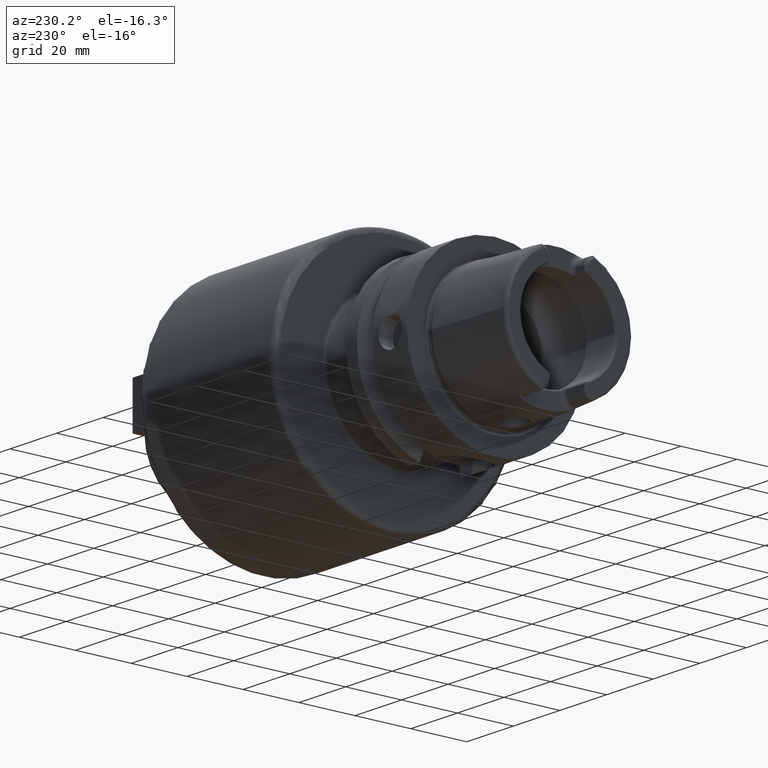
[diagram: clean part render]
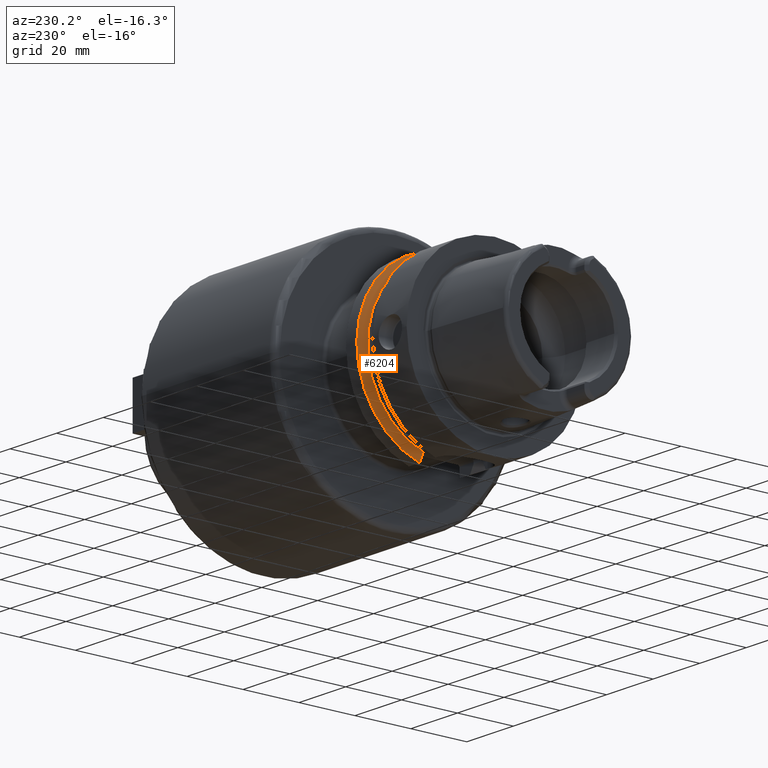
[diagram: same view with one face highlighted and labeled with its STEP entity id]
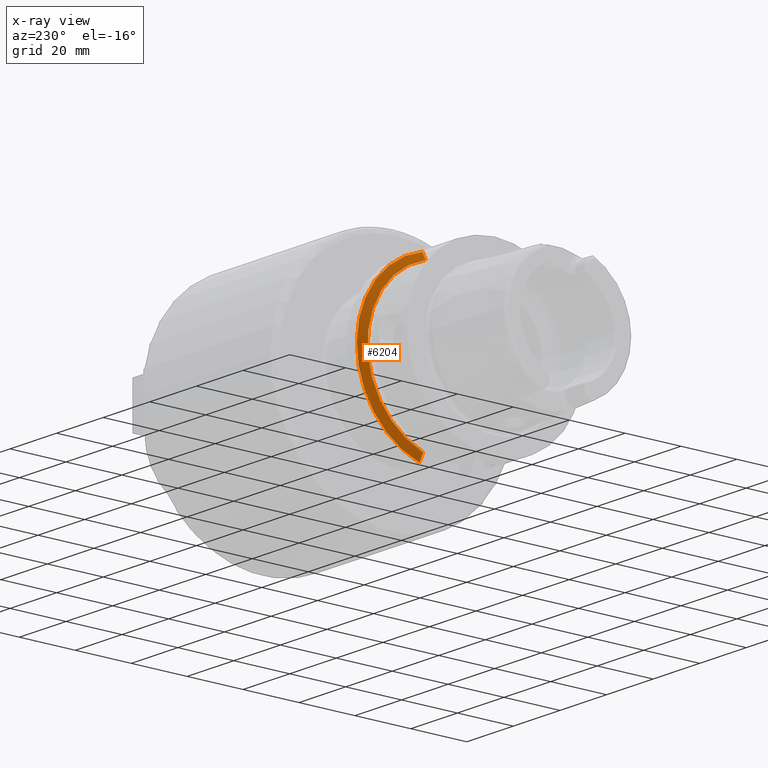
[diagram: x-ray of the same camera — body ghosted, the highlighted face saturated]
A machine part, auxiliary view. The second image highlights one B-rep face of the part: STEP entity #6204.
The next image is the same camera in x-ray: the body ghosted, the highlighted face saturated — about 0% of this face is hidden behind the body in this view.
In plain terms, the highlighted conical surface has half-angle 60 deg.
Its self-contained STEP definition (entity closure, byte-faithful):
#2166=CARTESIAN_POINT('',(2.137749907476E1,9.0175E0,-3.018169467989E1));
#2167=CARTESIAN_POINT('',(2.120260671566E1,9.0175E0,-2.986554088755E1));
#2168=CARTESIAN_POINT('',(2.085812292499E1,9.0175E0,-2.924200119110E1));
#2169=CARTESIAN_POINT('',(2.035750942268E1,9.0175E0,-2.833337204728E1));
#2170=CARTESIAN_POINT('',(2.003409260855E1,9.0175E0,-2.774465116011E1));
#2171=CARTESIAN_POINT('',(1.9875E1,9.0175E0,-2.745461174016E1));
#2173=CARTESIAN_POINT('',(2.137749907476E1,0.E0,0.E0));
#2174=DIRECTION('',(1.E0,0.E0,0.E0));
#2175=DIRECTION('',(0.E0,2.862698412698E-1,-9.581490374568E-1));
#2176=AXIS2_PLACEMENT_3D('',#2173,#2174,#2175);
#2178=CARTESIAN_POINT('',(1.9875E1,8.0175E0,2.776311772483E1));
#2179=CARTESIAN_POINT('',(2.003456921596E1,8.0175E0,2.805079344433E1));
#2180=CARTESIAN_POINT('',(2.035862308375E1,8.0175E0,2.863431787984E1));
#2181=CARTESIAN_POINT('',(2.085926872163E1,8.0175E0,2.953380309393E1));
#2182=CARTESIAN_POINT('',(2.120309833211E1,8.0175E0,3.015023700722E1));
#2183=CARTESIAN_POINT('',(2.137749907476E1,8.0175E0,3.046259499370E1));
#2185=CARTESIAN_POINT('',(1.9875E1,0.E0,0.E0));
#2186=DIRECTION('',(-1.E0,0.E0,0.E0));
#2187=DIRECTION('',(0.E0,2.774452312278E-1,9.607414551631E-1));
#2188=AXIS2_PLACEMENT_3D('',#2185,#2186,#2187);
#3352=CARTESIAN_POINT('',(1.9875E1,8.0175E0,2.776311772483E1));
#3353=VERTEX_POINT('',#3352);
#3355=VERTEX_POINT('',#2183);
#3376=CARTESIAN_POINT('',(1.9875E1,9.0175E0,-2.745461174016E1));
#3378=VERTEX_POINT('',#3376);
#3384=VERTEX_POINT('',#2166);
#6192=CARTESIAN_POINT('',(2.062624953738E1,0.E0,0.E0));
#6193=DIRECTION('',(1.E0,0.E0,0.E0));
#6194=DIRECTION('',(0.E0,-1.E0,0.E0));
#6195=AXIS2_PLACEMENT_3D('',#6192,#6193,#6194);
#6196=CONICAL_SURFACE('',#6195,3.019879763210E1,6.E1);
#6197=ORIENTED_EDGE('',*,*,#4992,.F.);
#6198=ORIENTED_EDGE('',*,*,#6085,.T.);
#6199=ORIENTED_EDGE('',*,*,#5987,.F.);
#6201=ORIENTED_EDGE('',*,*,#6200,.T.);
#6202=EDGE_LOOP('',(#6197,#6198,#6199,#6201));
#6203=FACE_OUTER_BOUND('',#6202,.F.);
#6204=ADVANCED_FACE('',(#6203),#6196,.T.);
#2172=B_SPLINE_CURVE_WITH_KNOTS('',3,(#2166,#2167,#2168,#2169,#2170,#2171),
.UNSPECIFIED.,.F.,.F.,(4,1,1,4),(0.E0,3.333333333333E-1,6.666666666667E-1,1.E0),
.UNSPECIFIED.);
#2177=CIRCLE('',#2176,3.15E1);
#2184=B_SPLINE_CURVE_WITH_KNOTS('',3,(#2178,#2179,#2180,#2181,#2182,#2183),
.UNSPECIFIED.,.F.,.F.,(4,1,1,4),(0.E0,3.333333333333E-1,6.666666666667E-1,1.E0),
.UNSPECIFIED.);
#2189=CIRCLE('',#2188,2.889759526419E1);
#4992=EDGE_CURVE('',#3384,#3378,#2172,.T.);
#5987=EDGE_CURVE('',#3353,#3355,#2184,.T.);
#6085=EDGE_CURVE('',#3384,#3355,#2177,.T.);
#6200=EDGE_CURVE('',#3353,#3378,#2189,.T.);